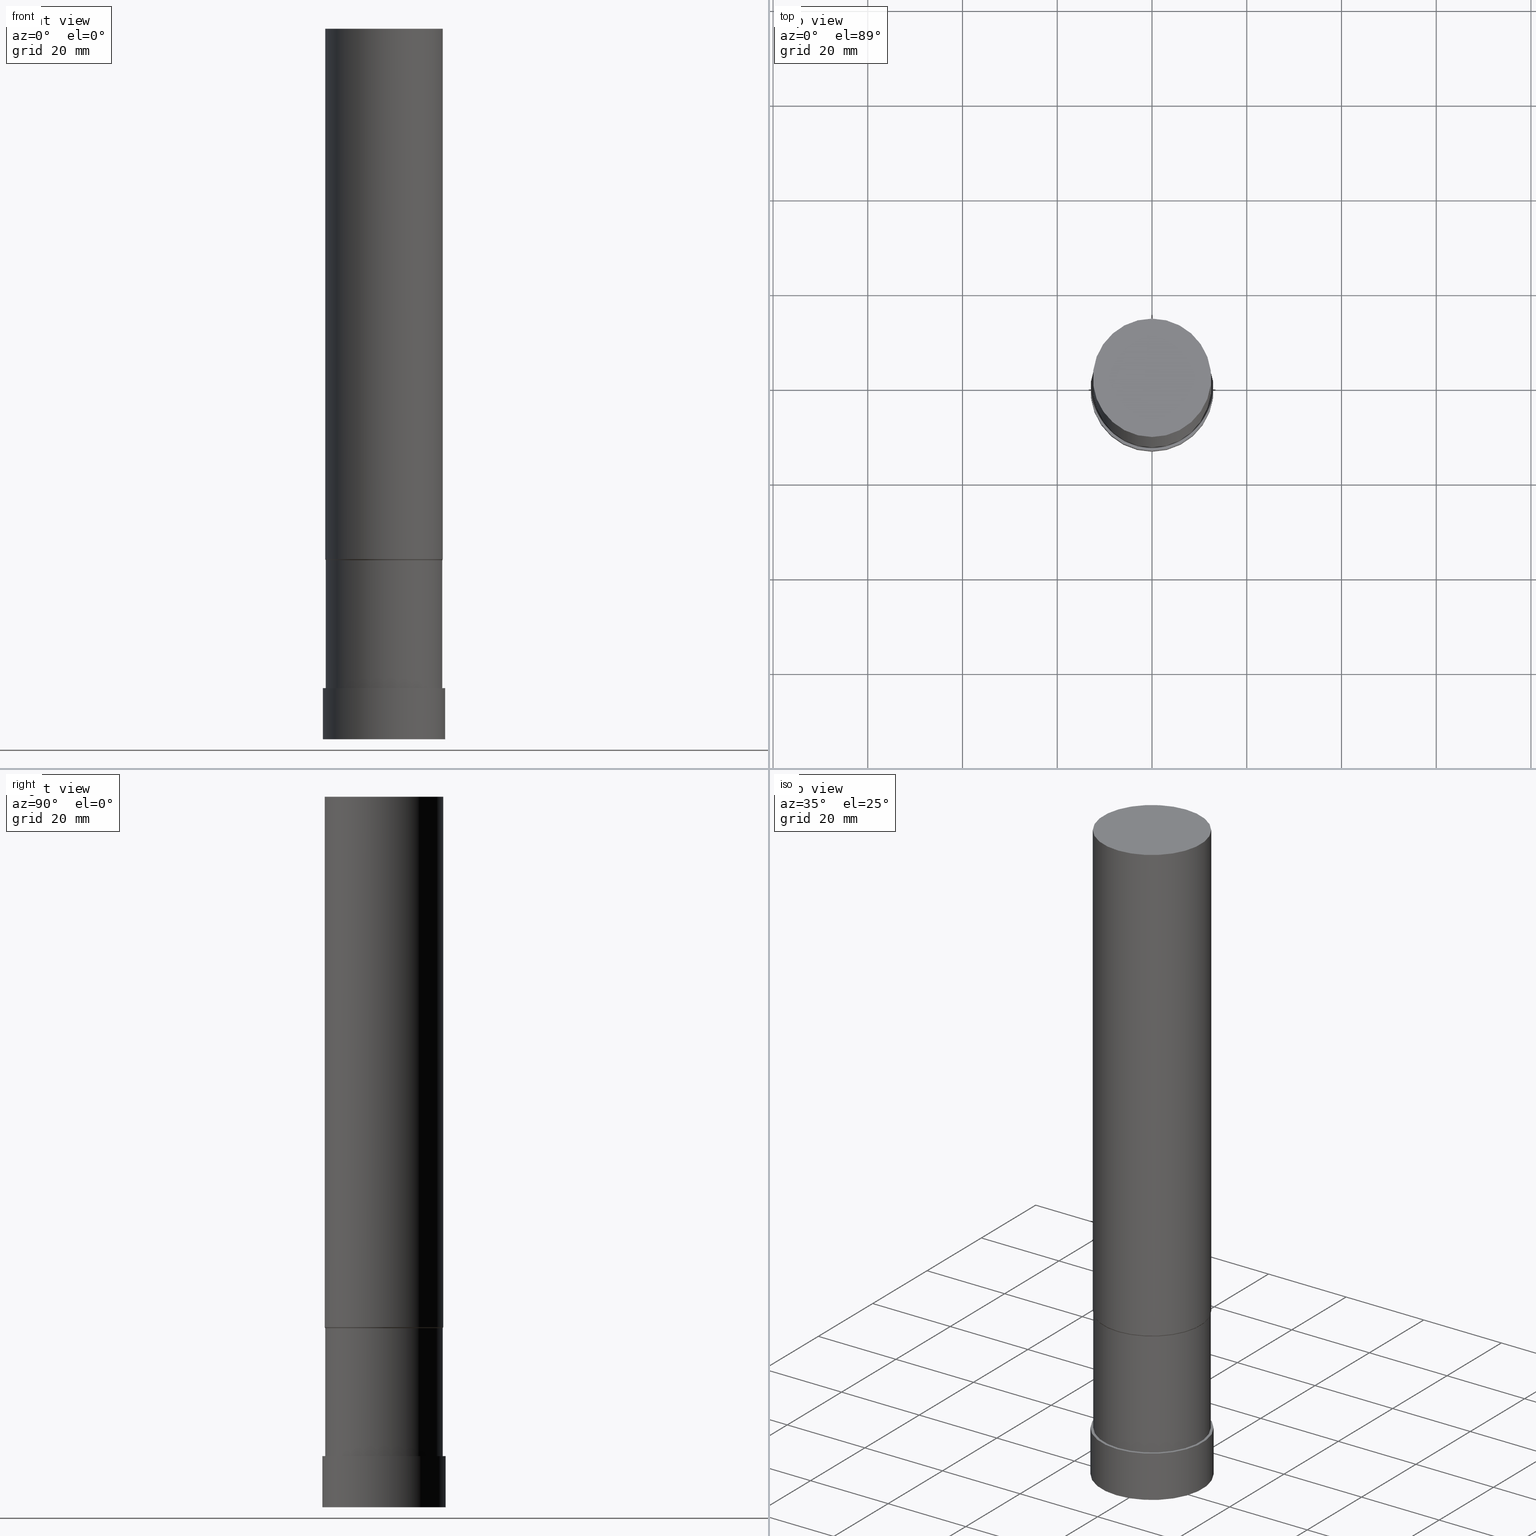
[diagram: canonical four-view strip — front | top / right | iso, engineering-drawing reading convention]
A machine part, canonical four-view strip (front | top / right | iso — engineering-drawing reading convention). The complete STEP part file that produces these views, byte-faithful:
ISO-10303-21;
HEADER;
FILE_DESCRIPTION((''),'1');
FILE_NAME('W:/Translate/BIG-HP/\X2\30C030A630F330ED30FC30C930C730FC30BF\X0\/201309/\X2\5207524A5DE55177\X0\/\X2\FF74FF9DFF84FF9EFF90FF9952A05DE5\X0\/01_\X2\FF8CFF99FF76FF6FFF84FF90FF99\X0\FCM/04_\X2\FF7DFF84FF9AFF70FF84FF7CFF6CFF9DFF78578B\X0\/02_\X2\FF75FF70FF8AFF9EFF70FF7BFF72FF7DFF9E\X0\/ST25-FCM26093-150.stp','2013-09-25T09:11:36',(''),(''),'Spatial Interop R18','Kubotek KeyCreator V8.5.1 (14335)',' ');
FILE_SCHEMA(('CONFIG_CONTROL_DESIGN'));
ENDSEC;
DATA;
#1=DESIGN_CONTEXT('',#27,'design');
#2=APPLICATION_PROTOCOL_DEFINITION('INTERNATIONAL STANDARD','config_control_design',1994,#27);
#3=PRODUCT_CATEGORY_RELATIONSHIP('NONE','NONE',#28,#29);
#4=DATE_AND_TIME(#30,#31);
#5=DATE_TIME_ROLE('creation_date');
#6=DATE_TIME_ROLE('classification_date');
#7=PERSON_AND_ORGANIZATION_ROLE('creator');
#8=PERSON_AND_ORGANIZATION_ROLE('design_supplier');
#9=PERSON_AND_ORGANIZATION_ROLE('classification_officer');
#10=PERSON_AND_ORGANIZATION_ROLE('design_owner');
#11=APPROVAL_PERSON_ORGANIZATION(#32,#33,#34);
#12=APPROVAL_DATE_TIME(#4,#33);
#13=CC_DESIGN_APPROVAL(#33,(#35,#36,#37));
#14=CC_DESIGN_DATE_AND_TIME_ASSIGNMENT(#4,#5,(#37));
#15=CC_DESIGN_DATE_AND_TIME_ASSIGNMENT(#4,#6,(#35));
#16=CC_DESIGN_PERSON_AND_ORGANIZATION_ASSIGNMENT(#32,#10,(#38));
#17=CC_DESIGN_PERSON_AND_ORGANIZATION_ASSIGNMENT(#32,#7,(#37));
#18=CC_DESIGN_PERSON_AND_ORGANIZATION_ASSIGNMENT(#32,#7,(#36));
#19=CC_DESIGN_PERSON_AND_ORGANIZATION_ASSIGNMENT(#32,#8,(#36));
#20=CC_DESIGN_SECURITY_CLASSIFICATION(#35,(#36));
#21=CC_DESIGN_PERSON_AND_ORGANIZATION_ASSIGNMENT(#32,#9,(#35));
#22=SHAPE_DEFINITION_REPRESENTATION(#39,#40);
#23= (GEOMETRIC_REPRESENTATION_CONTEXT(3)GLOBAL_UNCERTAINTY_ASSIGNED_CONTEXT((#43))GLOBAL_UNIT_ASSIGNED_CONTEXT((#45,#46,#47))REPRESENTATION_CONTEXT('NONE','WORKSPACE'));
#27=APPLICATION_CONTEXT('CONFIGURATION CONTROLLED 3D DESIGNS OF MECHANICAL PARTS AND ASSEMBLIES');
#28=PRODUCT_CATEGORY('part','NONE');
#29=PRODUCT_RELATED_PRODUCT_CATEGORY('detail',' ',(#38));
#30=CALENDAR_DATE(2013,25,8);
#31=LOCAL_TIME(18,11,36.0,#49);
#32=PERSON_AND_ORGANIZATION(#50,#51);
#33=APPROVAL(#52,'SOLID MODEL');
#34=APPROVAL_ROLE('APPROVED');
#35=SECURITY_CLASSIFICATION('','',#53);
#36=PRODUCT_DEFINITION_FORMATION_WITH_SPECIFIED_SOURCE(' ','NONE',#38,.NOT_KNOWN.);
#37=PRODUCT_DEFINITION('NONE','NONE',#36,#1);
#38=PRODUCT('1','1','PART-1-DESC',(#54));
#39=PRODUCT_DEFINITION_SHAPE('NONE','NONE',#37);
#40=ADVANCED_BREP_SHAPE_REPRESENTATION('1',(#55,#56),#23);
#43=UNCERTAINTY_MEASURE_WITH_UNIT(LENGTH_MEASURE(1.0E-006),#45,'','');
#45= (CONVERSION_BASED_UNIT('MILLIMETRE',#59)LENGTH_UNIT()NAMED_UNIT(#62));
#46= (NAMED_UNIT(#64)PLANE_ANGLE_UNIT()SI_UNIT($,.RADIAN.));
#47= (NAMED_UNIT(#64)SOLID_ANGLE_UNIT()SI_UNIT($,.STERADIAN.));
#49=COORDINATED_UNIVERSAL_TIME_OFFSET(9,0,.AHEAD.);
#50=PERSON('','UNSPECIFIED',$,$,$,$);
#51=ORGANIZATION('UNSPECIFIED','UNSPECIFIED','UNSPECIFIED');
#52=APPROVAL_STATUS('approved');
#53=SECURITY_CLASSIFICATION_LEVEL('unclassified');
#54=MECHANICAL_CONTEXT('',#27,'mechanical');
#55=MANIFOLD_SOLID_BREP('1',#70);
#56=AXIS2_PLACEMENT_3D('',#71,#72,#73);
#59=LENGTH_MEASURE_WITH_UNIT(LENGTH_MEASURE(1.0),#74);
#62=DIMENSIONAL_EXPONENTS(1.0,0.0,0.0,0.0,0.0,0.0,0.0);
#64=DIMENSIONAL_EXPONENTS(0.0,0.0,0.0,0.0,0.0,0.0,0.0);
#70=CLOSED_SHELL('',(#75,#76,#77,#78,#79,#80,#81));
#71=CARTESIAN_POINT('',(0.0,0.0,0.0));
#72=DIRECTION('',(0.0,0.0,1.0));
#73=DIRECTION('',(1.0,0.0,0.0));
#74= (NAMED_UNIT(#62)LENGTH_UNIT()SI_UNIT(.MILLI.,.METRE.));
#75=ADVANCED_FACE('',(#83),#84,.T.);
#76=ADVANCED_FACE('',(#85,#86),#87,.T.);
#77=ADVANCED_FACE('',(#88,#89),#90,.T.);
#78=ADVANCED_FACE('',(#91,#92),#93,.T.);
#79=ADVANCED_FACE('',(#94,#95),#96,.T.);
#80=ADVANCED_FACE('',(#97,#98),#99,.T.);
#81=ADVANCED_FACE('',(#100),#101,.T.);
#83=FACE_OUTER_BOUND('',#102,.T.);
#84=PLANE('',#103);
#85=FACE_BOUND('',#104,.T.);
#86=FACE_BOUND('',#105,.T.);
#87=CYLINDRICAL_SURFACE('',#106,12.9999999999999);
#88=FACE_BOUND('',#107,.T.);
#89=FACE_OUTER_BOUND('',#108,.T.);
#90=PLANE('',#109);
#91=FACE_BOUND('',#110,.T.);
#92=FACE_BOUND('',#111,.T.);
#93=CYLINDRICAL_SURFACE('',#112,12.4);
#94=FACE_BOUND('',#113,.T.);
#95=FACE_BOUND('',#114,.T.);
#96=CONICAL_SURFACE('',#115,12.45,0.523598777490546);
#97=FACE_BOUND('',#116,.T.);
#98=FACE_BOUND('',#117,.T.);
#99=CYLINDRICAL_SURFACE('',#118,12.5);
#100=FACE_OUTER_BOUND('',#119,.T.);
#101=PLANE('',#120);
#102=EDGE_LOOP('',(#121));
#103=AXIS2_PLACEMENT_3D('',#122,#123,#124);
#104=EDGE_LOOP('',(#125));
#105=EDGE_LOOP('',(#126));
#106=AXIS2_PLACEMENT_3D('',#127,#128,#129);
#107=EDGE_LOOP('',(#130));
#108=EDGE_LOOP('',(#131));
#109=AXIS2_PLACEMENT_3D('',#132,#133,#134);
#110=EDGE_LOOP('',(#135));
#111=EDGE_LOOP('',(#136));
#112=AXIS2_PLACEMENT_3D('',#137,#138,#139);
#113=EDGE_LOOP('',(#140));
#114=EDGE_LOOP('',(#141));
#115=AXIS2_PLACEMENT_3D('',#142,#143,#144);
#116=EDGE_LOOP('',(#145));
#117=EDGE_LOOP('',(#146));
#118=AXIS2_PLACEMENT_3D('',#147,#148,#149);
#119=EDGE_LOOP('',(#150));
#120=AXIS2_PLACEMENT_3D('',#151,#152,#153);
#121=ORIENTED_EDGE('',*,*,#154,.F.);
#122=CARTESIAN_POINT('',(0.0,6.49999999999996,0.0));
#123=DIRECTION('',(6.12323399573677E-017,1.22464679914735E-016,-1.0));
#124=DIRECTION('',(1.23259516440783E-032,-1.0,-1.22464679914735E-016));
#125=ORIENTED_EDGE('',*,*,#155,.F.);
#126=ORIENTED_EDGE('',*,*,#154,.T.);
#127=CARTESIAN_POINT('',(-3.30255011346928E-016,-6.60510022693853E-016,5.39347363789892));
#128=DIRECTION('',(6.12323399573677E-017,1.22464679914735E-016,-1.0));
#129=DIRECTION('',(-1.23259516440783E-032,1.0,1.22464679914735E-016));
#130=ORIENTED_EDGE('',*,*,#156,.F.);
#131=ORIENTED_EDGE('',*,*,#155,.T.);
#132=CARTESIAN_POINT('',(-6.60510022693853E-016,12.7,10.7869472757978));
#133=DIRECTION('',(-6.12323399573677E-017,-1.22464679914735E-016,1.0));
#134=DIRECTION('',(-1.23259516440783E-032,1.0,1.22464679914735E-016));
#135=ORIENTED_EDGE('',*,*,#157,.F.);
#136=ORIENTED_EDGE('',*,*,#156,.T.);
#137=CARTESIAN_POINT('',(-1.48836659467263E-015,-2.97673318934525E-015,24.306871102899));
#138=DIRECTION('',(6.12323399573676E-017,1.22464679914735E-016,-1.0));
#139=DIRECTION('',(-1.23259516440783E-032,1.0,1.22464679914735E-016));
#140=ORIENTED_EDGE('',*,*,#158,.F.);
#141=ORIENTED_EDGE('',*,*,#157,.T.);
#142=CARTESIAN_POINT('',(-2.32152604282185E-015,-4.6430520856437E-015,37.9133974700001));
#143=DIRECTION('',(-6.12323399573677E-017,-1.22464679914735E-016,1.0));
#144=DIRECTION('',(-1.23259516440783E-032,1.0,1.22464679914735E-016));
#145=ORIENTED_EDGE('',*,*,#159,.F.);
#146=ORIENTED_EDGE('',*,*,#158,.T.);
#147=CARTESIAN_POINT('',(-5.75583995629873E-015,-1.15116799125975E-014,94.0000000050001));
#148=DIRECTION('',(6.12323399573677E-017,1.22464679914735E-016,-1.0));
#149=DIRECTION('',(-1.23259516440783E-032,1.0,1.22464679914735E-016));
#150=ORIENTED_EDGE('',*,*,#159,.T.);
#151=CARTESIAN_POINT('',(-9.18485099360516E-015,6.24999999999998,150.0));
#152=DIRECTION('',(-6.12323399573677E-017,-1.22464679914735E-016,1.0));
#153=DIRECTION('',(-1.23259516440783E-032,1.0,1.22464679914735E-016));
#154=EDGE_CURVE('',#160,#160,#161,.T.);
#155=EDGE_CURVE('',#162,#162,#163,.T.);
#156=EDGE_CURVE('',#164,#164,#165,.T.);
#157=EDGE_CURVE('',#166,#166,#167,.T.);
#158=EDGE_CURVE('',#168,#168,#169,.T.);
#159=EDGE_CURVE('',#170,#170,#171,.T.);
#160=VERTEX_POINT('',#172);
#161=CIRCLE('',#173,12.9999999999999);
#162=VERTEX_POINT('',#174);
#163=CIRCLE('',#175,13.0);
#164=VERTEX_POINT('',#176);
#165=CIRCLE('',#177,12.4);
#166=VERTEX_POINT('',#178);
#167=CIRCLE('',#179,12.4);
#168=VERTEX_POINT('',#180);
#169=CIRCLE('',#181,12.5);
#170=VERTEX_POINT('',#182);
#171=CIRCLE('',#183,12.5);
#172=CARTESIAN_POINT('',(0.0,12.9999999999999,0.0));
#173=AXIS2_PLACEMENT_3D('',#184,#185,#186);
#174=CARTESIAN_POINT('',(-6.60510022693853E-016,13.0,10.7869472757978));
#175=AXIS2_PLACEMENT_3D('',#187,#188,#189);
#176=CARTESIAN_POINT('',(-6.60510022693853E-016,12.4,10.7869472757978));
#177=AXIS2_PLACEMENT_3D('',#190,#191,#192);
#178=CARTESIAN_POINT('',(-2.3162231666514E-015,12.4,37.8267949300001));
#179=AXIS2_PLACEMENT_3D('',#193,#194,#195);
#180=CARTESIAN_POINT('',(-2.3268289189923E-015,12.5,38.0000000100001));
#181=AXIS2_PLACEMENT_3D('',#196,#197,#198);
#182=CARTESIAN_POINT('',(-9.18485099360516E-015,12.5,150.0));
#183=AXIS2_PLACEMENT_3D('',#199,#200,#201);
#184=CARTESIAN_POINT('',(0.0,0.0,0.0));
#185=DIRECTION('',(-6.12323399573677E-017,-1.22464679914735E-016,1.0));
#186=DIRECTION('',(-1.23259516440783E-032,1.0,1.22464679914735E-016));
#187=CARTESIAN_POINT('',(-6.60510022693853E-016,-1.3210200453877E-015,10.7869472757978));
#188=DIRECTION('',(-6.12323399573677E-017,-1.22464679914735E-016,1.0));
#189=DIRECTION('',(-1.23259516440783E-032,1.0,1.22464679914735E-016));
#190=CARTESIAN_POINT('',(-6.60510022693853E-016,-1.3210200453877E-015,10.7869472757978));
#191=DIRECTION('',(-6.12323399573676E-017,-1.22464679914735E-016,1.0));
#192=DIRECTION('',(-1.23259516440783E-032,1.0,1.22464679914735E-016));
#193=CARTESIAN_POINT('',(-2.3162231666514E-015,-4.63244633330279E-015,37.8267949300001));
#194=DIRECTION('',(-6.12323399573676E-017,-1.22464679914735E-016,1.0));
#195=DIRECTION('',(-1.23259516440783E-032,1.0,1.22464679914735E-016));
#196=CARTESIAN_POINT('',(-2.3268289189923E-015,-4.6536578379846E-015,38.0000000100001));
#197=DIRECTION('',(-6.12323399573677E-017,-1.22464679914735E-016,1.0));
#198=DIRECTION('',(-1.23259516440783E-032,1.0,1.22464679914735E-016));
#199=CARTESIAN_POINT('',(-9.18485099360516E-015,-1.83697019872103E-014,150.0));
#200=DIRECTION('',(-6.12323399573677E-017,-1.22464679914735E-016,1.0));
#201=DIRECTION('',(-1.23259516440783E-032,1.0,1.22464679914735E-016));
ENDSEC;
END-ISO-10303-21;
